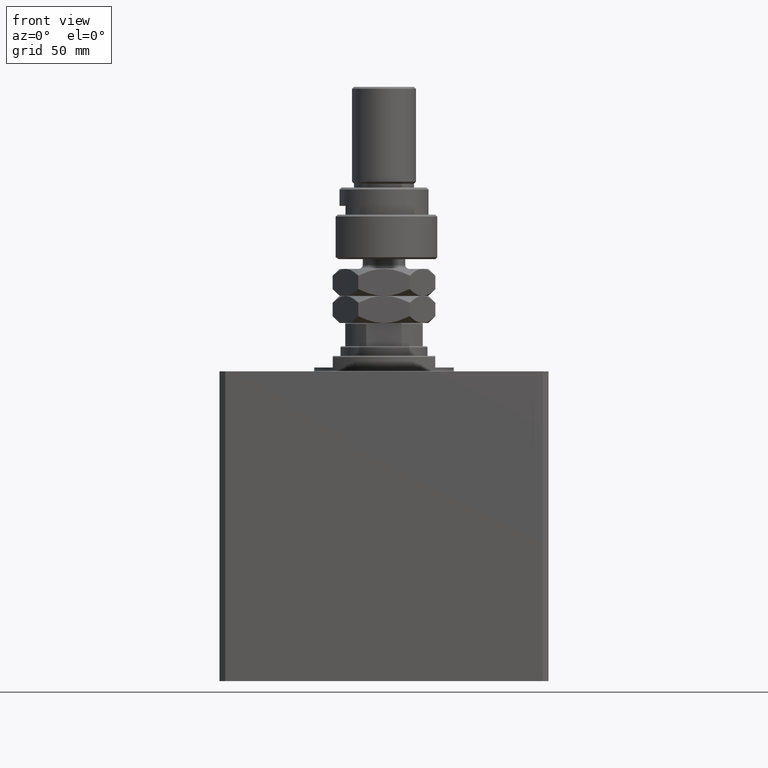
[diagram: clean part render]
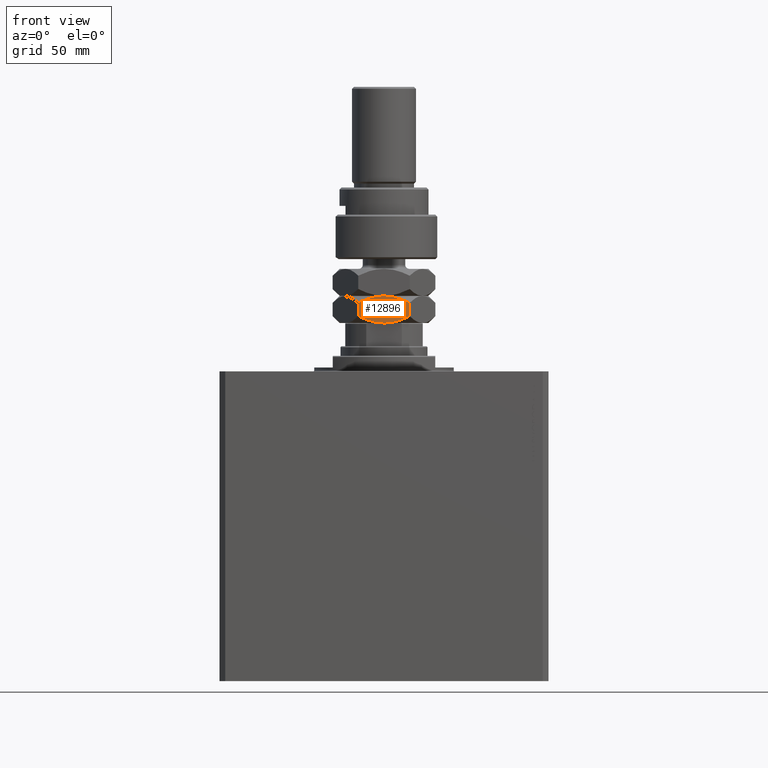
[diagram: same view with one face highlighted and labeled with its STEP entity id]
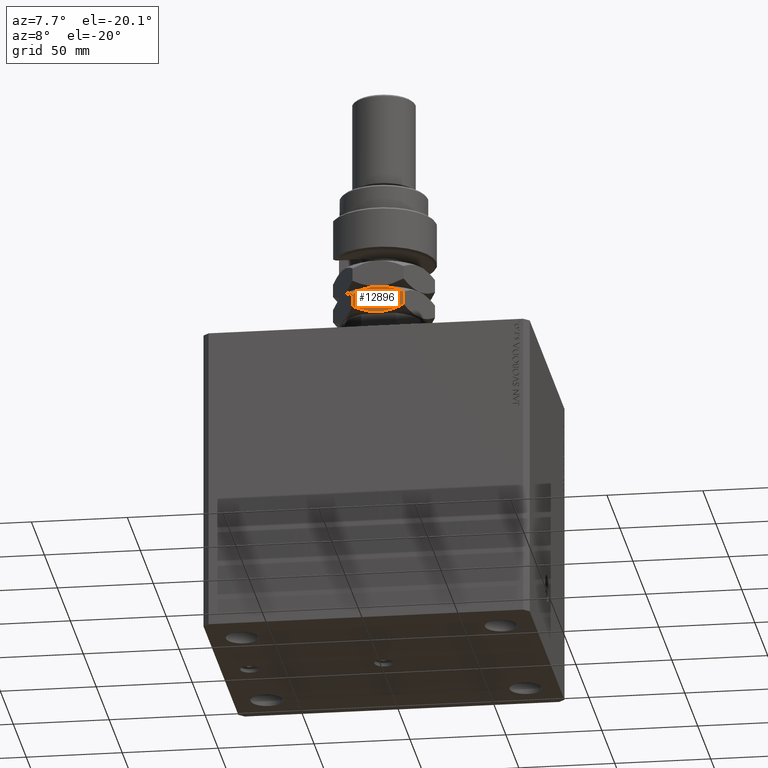
[diagram: same view with one face highlighted and labeled with its STEP entity id]
A machine part, front view. The second image highlights one B-rep face of the part: STEP entity #12896.
A second angle (auxiliary view) of the same face is appended — the face is thin or edge-on in the first view.
In plain terms, the highlighted planar face has unit normal (-0, 1, 0).
Its self-contained STEP definition (entity closure, byte-faithful):
#54 = LINE ( 'NONE', #29591, #33810 ) ;
#91 = CARTESIAN_POINT ( 'NONE',  ( 12.51003418050899896, -19.33544078103449237, 0.02214754275533956790 ) ) ;
#114 = DIRECTION ( 'NONE',  ( -0.000000000000000000, -0.000000000000000000, -1.000000000000000000 ) ) ;
#327 = CARTESIAN_POINT ( 'NONE',  ( 21.19663298550257124, -14.32023062262917890, 2.516937951454996991 ) ) ;
#532 = B_SPLINE_CURVE_WITH_KNOTS ( 'NONE', 3,
 ( #18340, #327, #11136, #22426, #14974, #43563, #32997, #91, #3692, #10890 ),
 .UNSPECIFIED., .F., .F.,
 ( 4, 2, 2, 2, 4 ),
 ( 2.544306848944028700E-07, 0.006882727124394009792, 0.01032396347124856124, 0.01204458164467583567, 0.01376519981810311183 ),
 .UNSPECIFIED. ) ;
#805 = CARTESIAN_POINT ( 'NONE',  ( 7.533391302902209041, -22.20870688608141563, 0.3531725490935799794 ) ) ;
#1038 = VERTEX_POINT ( 'NONE', #10711 ) ;
#2203 = CARTESIAN_POINT ( 'NONE',  ( 8.974191784962714635, -21.37686033991523615, 13.82274339568303745 ) ) ;
#3692 = CARTESIAN_POINT ( 'NONE',  ( 12.00360498572109869, -19.62782781297077861, 5.082197683525801264E-18 ) ) ;
#5358 = ORIENTED_EDGE ( 'NONE', *, *, #17448, .T. ) ;
#7039 = VECTOR ( 'NONE', #114, 1000.000000000000000 ) ;
#7334 = EDGE_CURVE ( 'NONE', #22169, #7528, #23052, .T. ) ;
#7528 = VERTEX_POINT ( 'NONE', #9457 ) ;
#8652 = DIRECTION ( 'NONE',  ( -0.8660254037844388186, -0.4999999999999996114, 0.000000000000000000 ) ) ;
#9327 = EDGE_CURVE ( 'NONE', #42098, #21772, #10898, .T. ) ;
#9457 = CARTESIAN_POINT ( 'NONE',  ( 23.00000000000000000, -13.27905619136139670, 10.44188761727722969 ) ) ;
#9992 = CARTESIAN_POINT ( 'NONE',  ( 23.00000000000000000, -13.27905619136139670, 10.44188761727722969 ) ) ;
#10228 = CARTESIAN_POINT ( 'NONE',  ( 11.49999999999998934, -19.91858428704209061, 14.00000000000000000 ) ) ;
#10464 = CARTESIAN_POINT ( 'NONE',  ( 22.09936078620807010, -13.79904048388690185, 10.96187190980276682 ) ) ;
#10568 = EDGE_CURVE ( 'NONE', #7528, #1038, #54, .T. ) ;
#10711 = CARTESIAN_POINT ( 'NONE',  ( 23.00000000000000000, -13.27905619136139670, 3.558112382722774303 ) ) ;
#10890 = CARTESIAN_POINT ( 'NONE',  ( 11.49999999999998934, -19.91858428704209061, 0.000000000000000000 ) ) ;
#10898 = B_SPLINE_CURVE_WITH_KNOTS ( 'NONE', 3,
 ( #32764, #33702, #805, #14511, #15218, #25781, #15450, #44288 ),
 .UNSPECIFIED., .F., .F.,
 ( 4, 2, 2, 4 ),
 ( 0.01376519981810311183, 0.02059946815584628305, 0.02401660232471787212, 0.02743373649358946120 ),
 .UNSPECIFIED. ) ;
#11136 = CARTESIAN_POINT ( 'NONE',  ( 19.35245248169770349, -15.38496873293517631, 1.632211428131101982 ) ) ;
#11802 = PLANE ( 'NONE',  #43837 ) ;
#12896 = ADVANCED_FACE ( 'NONE', ( #34117 ), #11802, .F. ) ;
#13441 = CARTESIAN_POINT ( 'NONE',  ( -4.401974839353477935E-15, -26.55811238272277919, 3.558112382722767197 ) ) ;
#14317 = CARTESIAN_POINT ( 'NONE',  ( 21.18561130058603581, -14.32659399538266598, 11.44392212070776260 ) ) ;
#14511 = CARTESIAN_POINT ( 'NONE',  ( 4.624867511207326309, -23.88794388016087566, 1.307843751066036786 ) ) ;
#14521 = CARTESIAN_POINT ( 'NONE',  ( -4.336808689942017736E-15, -26.55811238272277919, 14.00000000000000000 ) ) ;
#14974 = CARTESIAN_POINT ( 'NONE',  ( 15.51476468404854003, -17.60065881597367010, 0.4351638361031570645 ) ) ;
#15218 = CARTESIAN_POINT ( 'NONE',  ( 3.676134192524331379, -24.43569531709166753, 1.691068488738588504 ) ) ;
#15450 = CARTESIAN_POINT ( 'NONE',  ( 0.9006392137919247975, -26.03812809019728292, 3.038128090197230069 ) ) ;
#17448 = EDGE_CURVE ( 'NONE', #17599, #21772, #22202, .T. ) ;
#17599 = VERTEX_POINT ( 'NONE', #17875 ) ;
#17676 = CARTESIAN_POINT ( 'NONE',  ( 18.37513248879265504, -15.94922469392330200, 12.69215624893396388 ) ) ;
#17875 = CARTESIAN_POINT ( 'NONE',  ( -3.738821091738284272E-15, -26.55811238272277919, 10.44188761727723680 ) ) ;
#18065 = DIRECTION ( 'NONE',  ( -0.000000000000000000, -0.000000000000000000, -1.000000000000000000 ) ) ;
#18340 = CARTESIAN_POINT ( 'NONE',  ( 23.00000000000000000, -13.27905619136139670, 3.558112382722774303 ) ) ;
#18660 = CARTESIAN_POINT ( 'NONE',  ( 11.49999999999998934, -19.91858428704209061, 14.00000000000000000 ) ) ;
#19388 = ORIENTED_EDGE ( 'NONE', *, *, #10568, .F. ) ;
#19935 = CARTESIAN_POINT ( 'NONE',  ( -4.336808689942017736E-15, -26.55811238272277919, 14.00000000000000000 ) ) ;
#21772 = VERTEX_POINT ( 'NONE', #13441 ) ;
#22169 = VERTEX_POINT ( 'NONE', #18660 ) ;
#22202 = LINE ( 'NONE', #14521, #7039 ) ;
#22426 = CARTESIAN_POINT ( 'NONE',  ( 16.48674779066320539, -17.03948410772191480, 0.6862758013547543001 ) ) ;
#23052 = B_SPLINE_CURVE_WITH_KNOTS ( 'NONE', 3,
 ( #10228, #31862, #46745, #17676, #28252, #14317, #10464, #9992 ),
 .UNSPECIFIED., .F., .F.,
 ( 4, 2, 2, 4 ),
 ( 0.01376519981810309448, 0.02059946815584628652, 0.02401660232471787559, 0.02743373649358946467 ),
 .UNSPECIFIED. ) ;
#23732 = ORIENTED_EDGE ( 'NONE', *, *, #26441, .F. ) ;
#23759 = DIRECTION ( 'NONE',  ( -0.4999999999999996114, 0.8660254037844388186, 0.000000000000000000 ) ) ;
#24705 = ORIENTED_EDGE ( 'NONE', *, *, #36510, .F. ) ;
#25781 = CARTESIAN_POINT ( 'NONE',  ( 1.814388699413959527, -25.51057457870151524, 2.556077879292241839 ) ) ;
#26441 = EDGE_CURVE ( 'NONE', #1038, #42098, #532, .T. ) ;
#27424 = ORIENTED_EDGE ( 'NONE', *, *, #7334, .F. ) ;
#28136 = CARTESIAN_POINT ( 'NONE',  ( 1.803367014497421650, -25.51693795145499877, 11.48306204854501722 ) ) ;
#28252 = CARTESIAN_POINT ( 'NONE',  ( 19.32386580747566640, -15.40147325699251724, 12.30893151126141660 ) ) ;
#28856 = CARTESIAN_POINT ( 'NONE',  ( 3.647547518302286740, -24.45219984114900669, 12.36778857186890868 ) ) ;
#29591 = CARTESIAN_POINT ( 'NONE',  ( 23.00000000000000000, -13.27905619136139670, 14.00000000000000000 ) ) ;
#29615 = ORIENTED_EDGE ( 'NONE', *, *, #9327, .F. ) ;
#30038 = CARTESIAN_POINT ( 'NONE',  ( 11.49999999999998934, -19.91858428704209061, 0.000000000000000000 ) ) ;
#31752 = CARTESIAN_POINT ( 'NONE',  ( 9.475678885897345083, -21.08732662719550177, 13.88890122221209822 ) ) ;
#31862 = CARTESIAN_POINT ( 'NONE',  ( 13.50031108690880899, -18.76370414255229235, 14.00000000000000178 ) ) ;
#32466 = CARTESIAN_POINT ( 'NONE',  ( 7.485235315951450197, -22.23650975811052177, 13.56483616389685132 ) ) ;
#32764 = CARTESIAN_POINT ( 'NONE',  ( 11.49999999999998934, -19.91858428704209061, 0.000000000000000000 ) ) ;
#32997 = CARTESIAN_POINT ( 'NONE',  ( 13.52432111410264071, -18.74984194688869010, 0.1110987777879014343 ) ) ;
#33702 = CARTESIAN_POINT ( 'NONE',  ( 9.499688913091178577, -21.07346443153188886, -9.147955830346443662E-17 ) ) ;
#33810 = VECTOR ( 'NONE', #18065, 1000.000000000000000 ) ;
#34117 = FACE_OUTER_BOUND ( 'NONE', #40609, .T. ) ;
#35581 = CARTESIAN_POINT ( 'NONE',  ( 10.48996581949098683, -20.50172779304969239, 13.97785245724466385 ) ) ;
#36510 = EDGE_CURVE ( 'NONE', #17599, #22169, #39922, .T. ) ;
#39922 = B_SPLINE_CURVE_WITH_KNOTS ( 'NONE', 3,
 ( #42549, #28136, #28856, #47122, #32466, #2203, #31752, #35581, #46875, #43269 ),
 .UNSPECIFIED., .F., .F.,
 ( 4, 2, 2, 2, 4 ),
 ( 2.544306848971405334E-07, 0.006882727124393994179, 0.01032396347124854563, 0.01204458164467582006, 0.01376519981810309448 ),
 .UNSPECIFIED. ) ;
#40609 = EDGE_LOOP ( 'NONE', ( #23732, #19388, #27424, #24705, #5358, #29615 ) ) ;
#42098 = VERTEX_POINT ( 'NONE', #30038 ) ;
#42549 = CARTESIAN_POINT ( 'NONE',  ( -3.738821091738284272E-15, -26.55811238272277919, 10.44188761727723680 ) ) ;
#43269 = CARTESIAN_POINT ( 'NONE',  ( 11.49999999999998934, -19.91858428704209061, 14.00000000000000000 ) ) ;
#43563 = CARTESIAN_POINT ( 'NONE',  ( 14.02580821503726938, -18.46030823416894151, 0.1772566043169696015 ) ) ;
#43837 = AXIS2_PLACEMENT_3D ( 'NONE', #19935, #23759, #8652 ) ;
#44288 = CARTESIAN_POINT ( 'NONE',  ( -4.401974839353477935E-15, -26.55811238272277919, 3.558112382722767197 ) ) ;
#46745 = CARTESIAN_POINT ( 'NONE',  ( 15.46660869709777941, -17.62846168800276914, 13.64682745090642335 ) ) ;
#46875 = CARTESIAN_POINT ( 'NONE',  ( 10.99639501427888355, -20.20934076111340616, 14.00000000000000355 ) ) ;
#47122 = CARTESIAN_POINT ( 'NONE',  ( 6.513252209336783949, -22.79768446636224866, 13.31372419864524659 ) ) ;